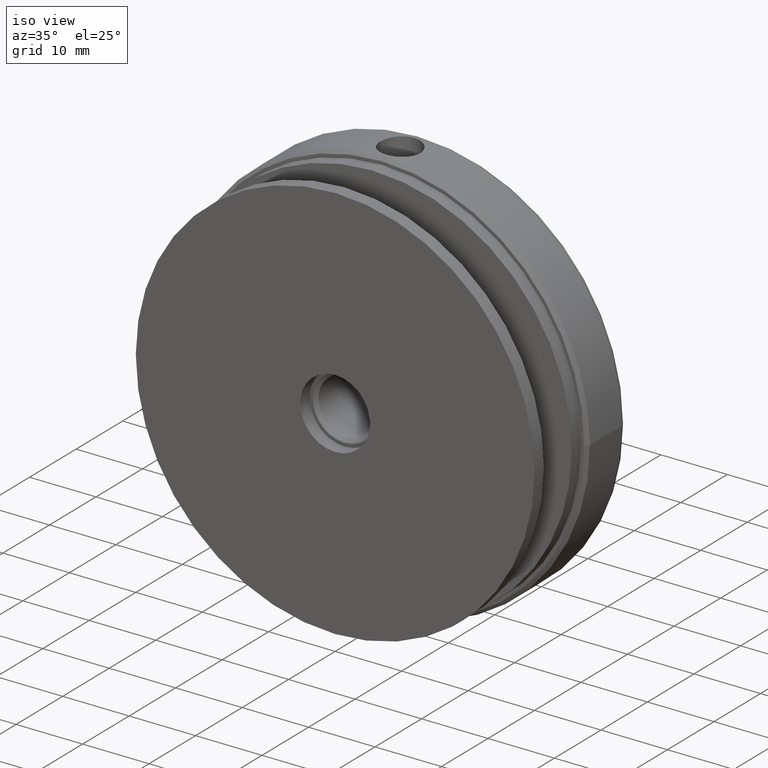
[diagram: clean part render]
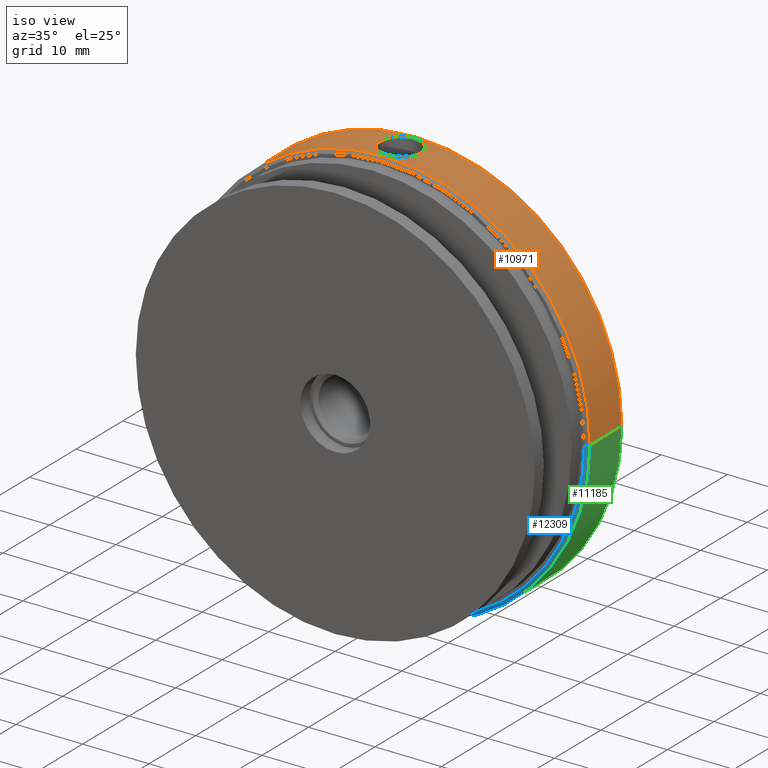
[diagram: same view with three faces highlighted in distinct colors, each labeled with its STEP entity id]
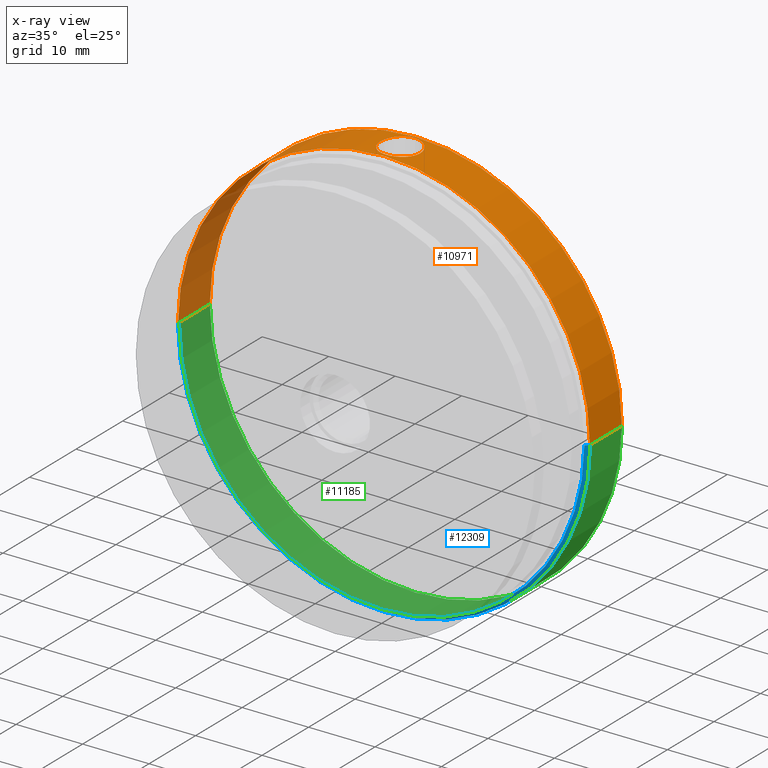
[diagram: x-ray of the same camera — body ghosted, the three highlighted faces saturated]
A machine part, iso view with three faces highlighted in distinct colors.
The next image is the same camera in x-ray (body ghosted, the three faces saturated) — at least one of them is partly hidden behind the body in this view.
Their STEP definitions:

[orange] entity #10971 — the highlighted cylindrical surface (partial cylindrical patch) has radius 31 mm, axis along (0, -1, 0).
#124 = CARTESIAN_POINT ( 'NONE',  ( -31.00000000000000000, 0.5000000000000487388, 3.796405077356795115E-15 ) ) ;
#351 = EDGE_CURVE ( 'NONE', #11819, #8046, #365, .T. ) ;
#365 = B_SPLINE_CURVE_WITH_KNOTS ( 'NONE', 3,
 ( #703, #12810, #4528, #15317, #14012, #7994, #15168, #813, #1915, #4417, #6748, #7946, #4367, #5632, #6895, #11545, #10495, #3274, #9130, #1971, #2127, #10553, #5731, #5679, #3119, #8056, #3321, #6954, #8109, #4473, #14065, #917, #9339, #759 ),
 .UNSPECIFIED., .F., .F.,
 ( 4, 2, 2, 2, 2, 2, 2, 2, 2, 2, 2, 2, 2, 2, 2, 2, 4 ),
 ( 0.000000000000000000, 0.0005865533964152013034, 0.001173106792830402607, 0.001759660189245603910, 0.002346213585660805213, 0.002932766982076007167, 0.003519320378491208687, 0.004105873774906410208, 0.004692427171321611294, 0.005278980567736812381, 0.005865533964152014335, 0.006452087360567215421, 0.007038640756982416508, 0.007625194153397617594, 0.008211747549812818681, 0.008798300946228019767, 0.009384854342643220854 ),
 .UNSPECIFIED. ) ;
#513 = CARTESIAN_POINT ( 'NONE',  ( 2.601926350769298235, 5.501264972971561917, 30.89080928192858622 ) ) ;
#517 = CYLINDRICAL_SURFACE ( 'NONE', #7371, 31.00000000000000000 ) ;
#575 = CARTESIAN_POINT ( 'NONE',  ( -0.7788302658809437284, 6.898730637634169938, 30.99080832718053458 ) ) ;
#623 = CARTESIAN_POINT ( 'NONE',  ( 1.328667053731146019, 6.691910907097170735, 30.97204739112611094 ) ) ;
#626 = DIRECTION ( 'NONE',  ( 1.000000000000000000, 9.512999706969587101E-16, 0.000000000000000000 ) ) ;
#703 = CARTESIAN_POINT ( 'NONE',  ( 2.999999999999988010, 3.995000000000078266, 30.85449724108302760 ) ) ;
#759 = CARTESIAN_POINT ( 'NONE',  ( -2.999999999999989786, 3.995000000000078266, 30.85449724108302760 ) ) ;
#813 = CARTESIAN_POINT ( 'NONE',  ( 2.385912502826457615, 2.165833168061829461, 30.90824084956113538 ) ) ;
#917 = CARTESIAN_POINT ( 'NONE',  ( -2.980369985848704051, 3.600209821163923962, 30.85642366474026588 ) ) ;
#1076 = LINE ( 'NONE', #2066, #13659 ) ;
#1619 = CARTESIAN_POINT ( 'NONE',  ( -4.731064025392031005E-16, 0.5000000000000780487, 0.000000000000000000 ) ) ;
#1646 = VERTEX_POINT ( 'NONE', #124 ) ;
#1824 = CARTESIAN_POINT ( 'NONE',  ( 2.382467907996050904, 5.828767043819261140, 30.90850959678712329 ) ) ;
#1832 = ORIENTED_EDGE ( 'NONE', *, *, #11573, .F. ) ;
#1836 = CARTESIAN_POINT ( 'NONE',  ( 2.999999999999988010, 3.995000000000078266, 30.85449724108302760 ) ) ;
#1892 = B_SPLINE_CURVE_WITH_KNOTS ( 'NONE', 3,
 ( #6600, #10203, #9046, #13925, #15026, #12728, #10364, #11560, #10255, #4331, #6700, #11459, #5497, #14919, #575, #11508, #2922, #3087, #11350, #7807, #11401, #623, #4126, #3132, #12566, #13761, #1824, #513, #7909, #3037, #6649, #9148 ),
 .UNSPECIFIED., .F., .F.,
 ( 4, 2, 2, 2, 2, 2, 2, 2, 2, 2, 2, 2, 2, 2, 2, 4 ),
 ( 0.009384854342643220854, 0.009971270467156916409, 0.01055768659167061370, 0.01114410271618430925, 0.01173051884069800654, 0.01231693496521170210, 0.01290335108972539765, 0.01348976721423909494, 0.01407618333875279050, 0.01466259946326648606, 0.01524901558778018335, 0.01583543171229388064, 0.01642184783680757446, 0.01700826396132127175, 0.01759468008583496557, 0.01876751233486236015 ),
 .UNSPECIFIED. ) ;
#1915 = CARTESIAN_POINT ( 'NONE',  ( 2.259248386307644463, 2.011554821221562595, 30.91787546181836888 ) ) ;
#1971 = CARTESIAN_POINT ( 'NONE',  ( -0.7784701428185704097, 1.091126090219296296, 30.99082167002948296 ) ) ;
#1981 = LINE ( 'NONE', #4287, #4774 ) ;
#2066 = CARTESIAN_POINT ( 'NONE',  ( 31.00000000000000000, 2.933259695742601546E-14, 0.000000000000000000 ) ) ;
#2127 = CARTESIAN_POINT ( 'NONE',  ( -0.9655416694752716467, 1.147827344047738007, 30.98549311360786618 ) ) ;
#2922 = CARTESIAN_POINT ( 'NONE',  ( -0.2004681085711121358, 6.994846365388307952, 30.99998513213870766 ) ) ;
#3037 = CARTESIAN_POINT ( 'NONE',  ( 2.920201997685284212, 4.785603675965037773, 30.86251907110975168 ) ) ;
#3087 = CARTESIAN_POINT ( 'NONE',  ( 0.1958431587760944281, 6.995151852098177692, 31.00001469535999377 ) ) ;
#3119 = CARTESIAN_POINT ( 'NONE',  ( -1.980895924021927490, 1.733299919612484308, 30.93696442513932254 ) ) ;
#3132 = CARTESIAN_POINT ( 'NONE',  ( 1.827058227476328289, 6.382519516018925643, 30.94654285424547169 ) ) ;
#3274 = CARTESIAN_POINT ( 'NONE',  ( -0.1947115944543201527, 0.9949292742604404216, 31.00000684442597532 ) ) ;
#3321 = CARTESIAN_POINT ( 'NONE',  ( -2.385118386747583141, 2.164866774843233088, 30.90830123276668573 ) ) ;
#3373 = CARTESIAN_POINT ( 'NONE',  ( 30.99999999999999289, 7.339802961777554202, 0.000000000000000000 ) ) ;
#4126 = CARTESIAN_POINT ( 'NONE',  ( 1.500993266385338476, 6.599882035760180621, 30.96407072092599577 ) ) ;
#4287 = CARTESIAN_POINT ( 'NONE',  ( -31.00000000000000000, -2.933259695742601546E-14, 3.796405077356795115E-15 ) ) ;
#4331 = CARTESIAN_POINT ( 'NONE',  ( -1.984606301100831249, 6.253223887476060838, 30.93671799146129331 ) ) ;
#4367 = CARTESIAN_POINT ( 'NONE',  ( 1.329169776190620711, 1.298431130452857518, 30.97201852730920990 ) ) ;
#4417 = CARTESIAN_POINT ( 'NONE',  ( 1.982580004953294672, 1.734992351293369595, 30.93684862534487579 ) ) ;
#4473 = CARTESIAN_POINT ( 'NONE',  ( -2.846855793899604414, 3.028516579733607550, 30.86909657359977288 ) ) ;
#4476 = EDGE_CURVE ( 'NONE', #5983, #10499, #9338, .T. ) ;
#4528 = CARTESIAN_POINT ( 'NONE',  ( 2.980524043376238996, 3.601654255195966936, 30.85640848596136365 ) ) ;
#4774 = VECTOR ( 'NONE', #12932, 1000.000000000000000 ) ;
#5240 = VERTEX_POINT ( 'NONE', #5443 ) ;
#5443 = CARTESIAN_POINT ( 'NONE',  ( 31.00000000000000355, 0.5000000000001074696, 0.000000000000000000 ) ) ;
#5497 = CARTESIAN_POINT ( 'NONE',  ( -1.332415280401676227, 6.690049088210074935, 30.97188484471010383 ) ) ;
#5632 = CARTESIAN_POINT ( 'NONE',  ( 0.9681758295985898322, 1.148807538986437615, 30.98540397530593893 ) ) ;
#5679 = CARTESIAN_POINT ( 'NONE',  ( -1.829395735746141449, 1.609313265293304873, 30.94640184555204598 ) ) ;
#5731 = CARTESIAN_POINT ( 'NONE',  ( -1.504437938733586000, 1.392144559791945735, 30.96390063336421150 ) ) ;
#5983 = VERTEX_POINT ( 'NONE', #3373 ) ;
#6600 = CARTESIAN_POINT ( 'NONE',  ( -2.999999999999989786, 3.995000000000078266, 30.85449724108302760 ) ) ;
#6649 = CARTESIAN_POINT ( 'NONE',  ( 2.999999999999988010, 4.391591053321828753, 30.85449724108302405 ) ) ;
#6700 = CARTESIAN_POINT ( 'NONE',  ( -1.830439604968841394, 6.379933108819238363, 30.94634250573709267 ) ) ;
#6748 = CARTESIAN_POINT ( 'NONE',  ( 1.831596699761798508, 1.610851044314511871, 30.94627959001746120 ) ) ;
#6895 = CARTESIAN_POINT ( 'NONE',  ( 0.7789791930407344855, 1.091177548621989679, 30.99081660632848312 ) ) ;
#6954 = CARTESIAN_POINT ( 'NONE',  ( -2.602355318988668564, 2.489701313906262481, 30.89076919741526339 ) ) ;
#6992 = DIRECTION ( 'NONE',  ( 9.462128050782584868E-16, -1.000000000000000000, -0.000000000000000000 ) ) ;
#7185 = CARTESIAN_POINT ( 'NONE',  ( -31.00000000000001066, 7.339802961777495582, 3.796405077356795904E-15 ) ) ;
#7262 = FACE_BOUND ( 'NONE', #11839, .T. ) ;
#7288 = AXIS2_PLACEMENT_3D ( 'NONE', #1619, #10157, #14811 ) ;
#7371 = AXIS2_PLACEMENT_3D ( 'NONE', #15348, #10679, #15404 ) ;
#7547 = EDGE_LOOP ( 'NONE', ( #13176, #13038, #9924, #1832 ) ) ;
#7807 = CARTESIAN_POINT ( 'NONE',  ( 0.7747036872988345424, 6.899833143813933312, 30.99091198264712332 ) ) ;
#7909 = CARTESIAN_POINT ( 'NONE',  ( 2.695291321156861208, 5.326751915346945587, 30.88269856205203467 ) ) ;
#7911 = EDGE_CURVE ( 'NONE', #8046, #11819, #1892, .T. ) ;
#7946 = CARTESIAN_POINT ( 'NONE',  ( 1.503640013976962564, 1.391544714837252839, 30.96394732010885775 ) ) ;
#7994 = CARTESIAN_POINT ( 'NONE',  ( 2.695834673094440692, 2.664157122529443811, 30.88265201039098073 ) ) ;
#8046 = VERTEX_POINT ( 'NONE', #9564 ) ;
#8056 = CARTESIAN_POINT ( 'NONE',  ( -2.261068789367289167, 2.013383527223097769, 30.91775031327298251 ) ) ;
#8109 = CARTESIAN_POINT ( 'NONE',  ( -2.696316369946748726, 2.665129274678661897, 30.88260981870940824 ) ) ;
#9046 = CARTESIAN_POINT ( 'NONE',  ( -2.981014773191561051, 4.385491663354274650, 30.85636141633590057 ) ) ;
#9101 = AXIS2_PLACEMENT_3D ( 'NONE', #12881, #12830, #626 ) ;
#9130 = CARTESIAN_POINT ( 'NONE',  ( -0.3936049285386361563, 1.014467395347750989, 30.99809863051376624 ) ) ;
#9148 = CARTESIAN_POINT ( 'NONE',  ( 2.999999999999988010, 3.995000000000078266, 30.85449724108302760 ) ) ;
#9338 = CIRCLE ( 'NONE', #9101, 31.00000000000000000 ) ;
#9339 = CARTESIAN_POINT ( 'NONE',  ( -2.999999999999988898, 3.799147846165444431, 30.85449724108302050 ) ) ;
#9427 = ORIENTED_EDGE ( 'NONE', *, *, #7911, .T. ) ;
#9564 = CARTESIAN_POINT ( 'NONE',  ( -2.999999999999989786, 3.995000000000078266, 30.85449724108302760 ) ) ;
#9748 = FACE_OUTER_BOUND ( 'NONE', #7547, .T. ) ;
#9924 = ORIENTED_EDGE ( 'NONE', *, *, #13361, .T. ) ;
#10157 = DIRECTION ( 'NONE',  ( -9.462128050782584868E-16, 1.000000000000000000, 0.000000000000000000 ) ) ;
#10203 = CARTESIAN_POINT ( 'NONE',  ( -2.999999999999989342, 4.190806318284644227, 30.85449724108303471 ) ) ;
#10255 = CARTESIAN_POINT ( 'NONE',  ( -2.260956126996513049, 5.976493045189286590, 30.91774991239451253 ) ) ;
#10364 = CARTESIAN_POINT ( 'NONE',  ( -2.604165693644809210, 5.497409578189960122, 30.89062003895221764 ) ) ;
#10495 = CARTESIAN_POINT ( 'NONE',  ( 0.1968849296617881384, 0.9950711193552437273, 30.99999311748220876 ) ) ;
#10499 = VERTEX_POINT ( 'NONE', #7185 ) ;
#10553 = CARTESIAN_POINT ( 'NONE',  ( -1.328908921399294618, 1.298212294799470090, 30.97203666676698219 ) ) ;
#10679 = DIRECTION ( 'NONE',  ( 9.462128050782584868E-16, -1.000000000000000000, -0.000000000000000000 ) ) ;
#10971 = ADVANCED_FACE ( 'NONE', ( #7262, #9748 ), #517, .T. ) ;
#11350 = CARTESIAN_POINT ( 'NONE',  ( 0.3911502484946818292, 6.975809098150519638, 30.99812563369594187 ) ) ;
#11401 = CARTESIAN_POINT ( 'NONE',  ( 0.9651813559036334089, 6.842298637429228947, 30.98550468667644964 ) ) ;
#11459 = CARTESIAN_POINT ( 'NONE',  ( -1.504577080098393083, 6.597818259314951028, 30.96389625741358387 ) ) ;
#11508 = CARTESIAN_POINT ( 'NONE',  ( -0.3953505954036387049, 6.975256047003599136, 30.99807212169506698 ) ) ;
#11545 = CARTESIAN_POINT ( 'NONE',  ( 0.3916336935047118328, 1.014124883120857801, 30.99813132368445423 ) ) ;
#11560 = CARTESIAN_POINT ( 'NONE',  ( -2.385011939774236200, 5.825473039333786573, 30.90831285266161998 ) ) ;
#11573 = EDGE_CURVE ( 'NONE', #5983, #5240, #1076, .T. ) ;
#11819 = VERTEX_POINT ( 'NONE', #1836 ) ;
#11839 = EDGE_LOOP ( 'NONE', ( #15405, #9427 ) ) ;
#12566 = CARTESIAN_POINT ( 'NONE',  ( 1.981444568727055211, 6.256002714179309976, 30.93692166236617780 ) ) ;
#12728 = CARTESIAN_POINT ( 'NONE',  ( -2.697137263502334736, 5.323014795322380976, 30.88253681999307787 ) ) ;
#12810 = CARTESIAN_POINT ( 'NONE',  ( 2.999999999999988010, 3.796658055099889850, 30.85449724108302760 ) ) ;
#12830 = DIRECTION ( 'NONE',  ( 9.462128050782584868E-16, -1.000000000000000000, -0.000000000000000000 ) ) ;
#12881 = CARTESIAN_POINT ( 'NONE',  ( -6.945015549185222062E-15, 7.339802961777524892, 0.000000000000000000 ) ) ;
#12932 = DIRECTION ( 'NONE',  ( 9.462128050782584868E-16, -1.000000000000000000, -0.000000000000000000 ) ) ;
#13038 = ORIENTED_EDGE ( 'NONE', *, *, #13647, .T. ) ;
#13092 = CIRCLE ( 'NONE', #7288, 31.00000000000000000 ) ;
#13176 = ORIENTED_EDGE ( 'NONE', *, *, #4476, .T. ) ;
#13361 = EDGE_CURVE ( 'NONE', #1646, #5240, #13092, .T. ) ;
#13647 = EDGE_CURVE ( 'NONE', #10499, #1646, #1981, .T. ) ;
#13659 = VECTOR ( 'NONE', #6992, 1000.000000000000000 ) ;
#13761 = CARTESIAN_POINT ( 'NONE',  ( 2.258244372478456885, 5.979587666653576328, 30.91794910527684337 ) ) ;
#13925 = CARTESIAN_POINT ( 'NONE',  ( -2.904189835160686961, 4.772569430009257374, 30.86368692063341612 ) ) ;
#14012 = CARTESIAN_POINT ( 'NONE',  ( 2.846487557669706181, 3.027438150191974486, 30.86913067068129379 ) ) ;
#14065 = CARTESIAN_POINT ( 'NONE',  ( -2.903604340189307909, 3.215547388555927366, 30.86374197122125551 ) ) ;
#14811 = DIRECTION ( 'NONE',  ( -1.000000000000000000, -9.478025443341022696E-16, 0.000000000000000000 ) ) ;
#14919 = CARTESIAN_POINT ( 'NONE',  ( -0.9694505336516567873, 6.840836560681650802, 30.98536988606451459 ) ) ;
#15026 = CARTESIAN_POINT ( 'NONE',  ( -2.846600908970034371, 4.961972584833161726, 30.86911876165972757 ) ) ;
#15168 = CARTESIAN_POINT ( 'NONE',  ( 2.603661116481116533, 2.491877063999526243, 30.89066007187524576 ) ) ;
#15317 = CARTESIAN_POINT ( 'NONE',  ( 2.904235158592380905, 3.218042734962140994, 30.86368232031374959 ) ) ;
#15348 = CARTESIAN_POINT ( 'NONE',  ( 0.000000000000000000, 0.000000000000000000, 0.000000000000000000 ) ) ;
#15404 = DIRECTION ( 'NONE',  ( 1.000000000000000000, 9.462128050782584868E-16, 0.000000000000000000 ) ) ;
#15405 = ORIENTED_EDGE ( 'NONE', *, *, #351, .T. ) ;

[blue] entity #12309 — the highlighted conical surface has half-angle 45 deg.
#124 = CARTESIAN_POINT ( 'NONE',  ( -31.00000000000000000, 0.5000000000000487388, 3.796405077356795115E-15 ) ) ;
#1043 = EDGE_CURVE ( 'NONE', #5748, #9090, #2422, .T. ) ;
#1282 = DIRECTION ( 'NONE',  ( -1.000000000000000000, -9.462128050782584868E-16, 0.000000000000000000 ) ) ;
#1565 = EDGE_CURVE ( 'NONE', #5240, #1646, #6922, .T. ) ;
#1646 = VERTEX_POINT ( 'NONE', #124 ) ;
#1651 = CARTESIAN_POINT ( 'NONE',  ( -30.49999999999994316, -1.419319207617382918E-14, 0.000000000000000000 ) ) ;
#2314 = DIRECTION ( 'NONE',  ( -1.000000000000000000, -9.478025443341022696E-16, 0.000000000000000000 ) ) ;
#2422 = CIRCLE ( 'NONE', #7054, 30.49999999999994316 ) ;
#2657 = EDGE_CURVE ( 'NONE', #5748, #1646, #13888, .T. ) ;
#2737 = FACE_OUTER_BOUND ( 'NONE', #3893, .T. ) ;
#3533 = CARTESIAN_POINT ( 'NONE',  ( -1.387743942365802930E-29, 1.466629847871300773E-14, 0.000000000000000000 ) ) ;
#3856 = CONICAL_SURFACE ( 'NONE', #14955, 30.49999999999994316, 0.7853981633974408405 ) ;
#3893 = EDGE_LOOP ( 'NONE', ( #11787, #12099, #12388, #8270 ) ) ;
#3896 = DIRECTION ( 'NONE',  ( 9.462128050782584868E-16, -1.000000000000000000, -0.000000000000000000 ) ) ;
#5202 = CARTESIAN_POINT ( 'NONE',  ( -1.387743942365802089E-29, 1.466629847871300457E-14, 0.000000000000000000 ) ) ;
#5240 = VERTEX_POINT ( 'NONE', #5443 ) ;
#5443 = CARTESIAN_POINT ( 'NONE',  ( 31.00000000000000355, 0.5000000000001074696, 0.000000000000000000 ) ) ;
#5748 = VERTEX_POINT ( 'NONE', #1651 ) ;
#6796 = DIRECTION ( 'NONE',  ( -0.7071067811865429098, 0.7071067811865521247, 0.000000000000000000 ) ) ;
#6922 = CIRCLE ( 'NONE', #11626, 31.00000000000000000 ) ;
#7054 = AXIS2_PLACEMENT_3D ( 'NONE', #5202, #3896, #12334 ) ;
#8093 = DIRECTION ( 'NONE',  ( -9.462128050782584868E-16, 1.000000000000000000, 0.000000000000000000 ) ) ;
#8270 = ORIENTED_EDGE ( 'NONE', *, *, #1565, .F. ) ;
#9090 = VERTEX_POINT ( 'NONE', #9637 ) ;
#9217 = CARTESIAN_POINT ( 'NONE',  ( 30.49999999999994316, 4.352578903359984464E-14, 3.735172737399420441E-15 ) ) ;
#9637 = CARTESIAN_POINT ( 'NONE',  ( 30.49999999999994316, 4.352578903359984464E-14, 3.765788907378107383E-15 ) ) ;
#11626 = AXIS2_PLACEMENT_3D ( 'NONE', #15305, #8093, #2314 ) ;
#11787 = ORIENTED_EDGE ( 'NONE', *, *, #12867, .F. ) ;
#12099 = ORIENTED_EDGE ( 'NONE', *, *, #1043, .F. ) ;
#12309 = ADVANCED_FACE ( 'NONE', ( #2737 ), #3856, .T. ) ;
#12334 = DIRECTION ( 'NONE',  ( -1.000000000000000000, -9.462128050782584868E-16, 0.000000000000000000 ) ) ;
#12388 = ORIENTED_EDGE ( 'NONE', *, *, #2657, .T. ) ;
#12867 = EDGE_CURVE ( 'NONE', #9090, #5240, #13277, .T. ) ;
#13043 = DIRECTION ( 'NONE',  ( 0.7071067811865415775, 0.7071067811865534569, 8.659560562354868763E-17 ) ) ;
#13137 = VECTOR ( 'NONE', #6796, 1000.000000000000114 ) ;
#13268 = DIRECTION ( 'NONE',  ( -9.462128050782584868E-16, 1.000000000000000000, 0.000000000000000000 ) ) ;
#13277 = LINE ( 'NONE', #9217, #15345 ) ;
#13795 = CARTESIAN_POINT ( 'NONE',  ( -30.49999999999994316, -1.419319207617382603E-14, 0.000000000000000000 ) ) ;
#13888 = LINE ( 'NONE', #13795, #13137 ) ;
#14955 = AXIS2_PLACEMENT_3D ( 'NONE', #3533, #13268, #1282 ) ;
#15305 = CARTESIAN_POINT ( 'NONE',  ( -4.731064025392031005E-16, 0.5000000000000780487, 0.000000000000000000 ) ) ;
#15345 = VECTOR ( 'NONE', #13043, 1000.000000000000114 ) ;

[green] entity #11185 — the highlighted cylindrical surface (partial cylindrical patch) has radius 31 mm, axis along (0, -1, 0).
#124 = CARTESIAN_POINT ( 'NONE',  ( -31.00000000000000000, 0.5000000000000487388, 3.796405077356795115E-15 ) ) ;
#890 = ORIENTED_EDGE ( 'NONE', *, *, #1681, .T. ) ;
#1076 = LINE ( 'NONE', #2066, #13659 ) ;
#1565 = EDGE_CURVE ( 'NONE', #5240, #1646, #6922, .T. ) ;
#1646 = VERTEX_POINT ( 'NONE', #124 ) ;
#1681 = EDGE_CURVE ( 'NONE', #10499, #5983, #12205, .T. ) ;
#1822 = CARTESIAN_POINT ( 'NONE',  ( 0.000000000000000000, 0.000000000000000000, 0.000000000000000000 ) ) ;
#1879 = DIRECTION ( 'NONE',  ( 1.000000000000000000, 9.462128050782584868E-16, 0.000000000000000000 ) ) ;
#1981 = LINE ( 'NONE', #4287, #4774 ) ;
#2066 = CARTESIAN_POINT ( 'NONE',  ( 31.00000000000000000, 2.933259695742601546E-14, 0.000000000000000000 ) ) ;
#2207 = CYLINDRICAL_SURFACE ( 'NONE', #14459, 31.00000000000000000 ) ;
#2230 = ORIENTED_EDGE ( 'NONE', *, *, #1565, .T. ) ;
#2314 = DIRECTION ( 'NONE',  ( -1.000000000000000000, -9.478025443341022696E-16, 0.000000000000000000 ) ) ;
#3247 = EDGE_LOOP ( 'NONE', ( #14055, #890, #12008, #2230 ) ) ;
#3373 = CARTESIAN_POINT ( 'NONE',  ( 30.99999999999999289, 7.339802961777554202, 0.000000000000000000 ) ) ;
#4225 = DIRECTION ( 'NONE',  ( 9.462128050782584868E-16, -1.000000000000000000, -0.000000000000000000 ) ) ;
#4287 = CARTESIAN_POINT ( 'NONE',  ( -31.00000000000000000, -2.933259695742601546E-14, 3.796405077356795115E-15 ) ) ;
#4774 = VECTOR ( 'NONE', #12932, 1000.000000000000000 ) ;
#5240 = VERTEX_POINT ( 'NONE', #5443 ) ;
#5443 = CARTESIAN_POINT ( 'NONE',  ( 31.00000000000000355, 0.5000000000001074696, 0.000000000000000000 ) ) ;
#5983 = VERTEX_POINT ( 'NONE', #3373 ) ;
#6922 = CIRCLE ( 'NONE', #11626, 31.00000000000000000 ) ;
#6992 = DIRECTION ( 'NONE',  ( 9.462128050782584868E-16, -1.000000000000000000, -0.000000000000000000 ) ) ;
#7185 = CARTESIAN_POINT ( 'NONE',  ( -31.00000000000001066, 7.339802961777495582, 3.796405077356795904E-15 ) ) ;
#8093 = DIRECTION ( 'NONE',  ( -9.462128050782584868E-16, 1.000000000000000000, 0.000000000000000000 ) ) ;
#10499 = VERTEX_POINT ( 'NONE', #7185 ) ;
#11004 = DIRECTION ( 'NONE',  ( 9.462128050782584868E-16, -1.000000000000000000, -0.000000000000000000 ) ) ;
#11185 = ADVANCED_FACE ( 'NONE', ( #15186 ), #2207, .T. ) ;
#11573 = EDGE_CURVE ( 'NONE', #5983, #5240, #1076, .T. ) ;
#11626 = AXIS2_PLACEMENT_3D ( 'NONE', #15305, #8093, #2314 ) ;
#11720 = AXIS2_PLACEMENT_3D ( 'NONE', #12322, #11004, #13314 ) ;
#12008 = ORIENTED_EDGE ( 'NONE', *, *, #11573, .T. ) ;
#12205 = CIRCLE ( 'NONE', #11720, 31.00000000000000000 ) ;
#12322 = CARTESIAN_POINT ( 'NONE',  ( -6.945015549185222062E-15, 7.339802961777524892, 0.000000000000000000 ) ) ;
#12932 = DIRECTION ( 'NONE',  ( 9.462128050782584868E-16, -1.000000000000000000, -0.000000000000000000 ) ) ;
#13314 = DIRECTION ( 'NONE',  ( 1.000000000000000000, 9.512999706969587101E-16, 0.000000000000000000 ) ) ;
#13647 = EDGE_CURVE ( 'NONE', #10499, #1646, #1981, .T. ) ;
#13659 = VECTOR ( 'NONE', #6992, 1000.000000000000000 ) ;
#14055 = ORIENTED_EDGE ( 'NONE', *, *, #13647, .F. ) ;
#14459 = AXIS2_PLACEMENT_3D ( 'NONE', #1822, #4225, #1879 ) ;
#15186 = FACE_OUTER_BOUND ( 'NONE', #3247, .T. ) ;
#15305 = CARTESIAN_POINT ( 'NONE',  ( -4.731064025392031005E-16, 0.5000000000000780487, 0.000000000000000000 ) ) ;